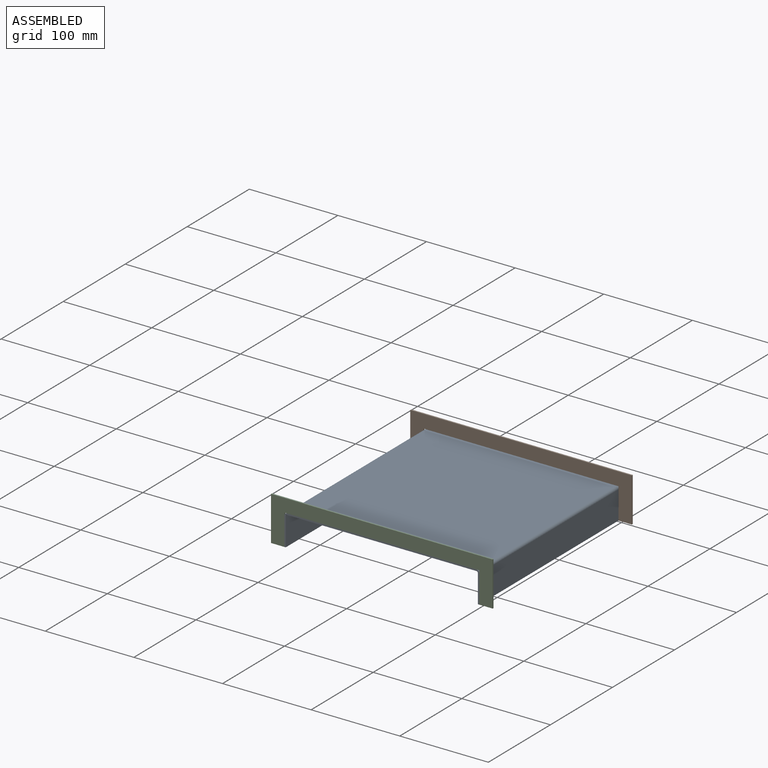
[diagram: assembled view]
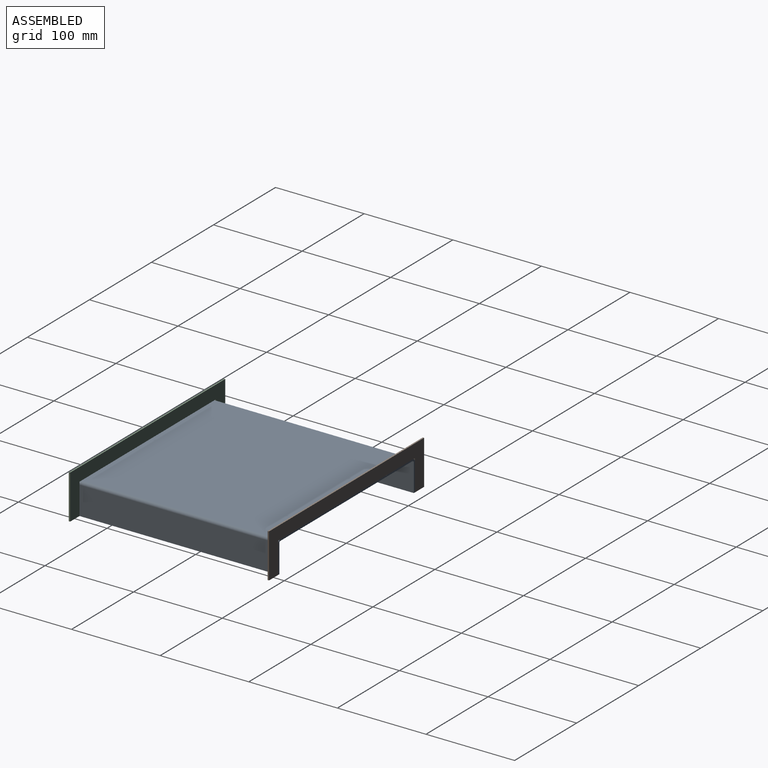
[diagram: assembled view, second angle]
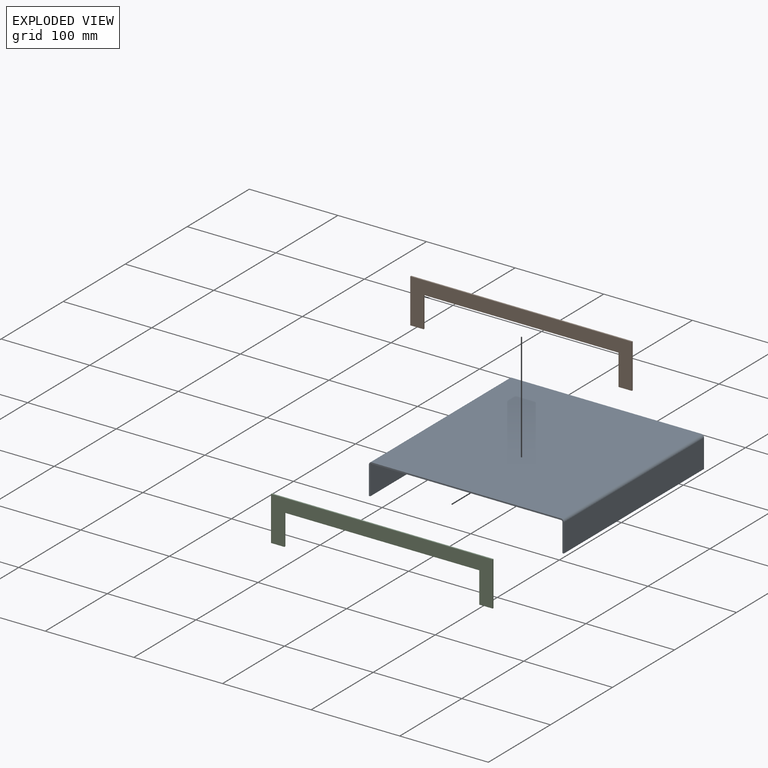
[diagram: exploded view]
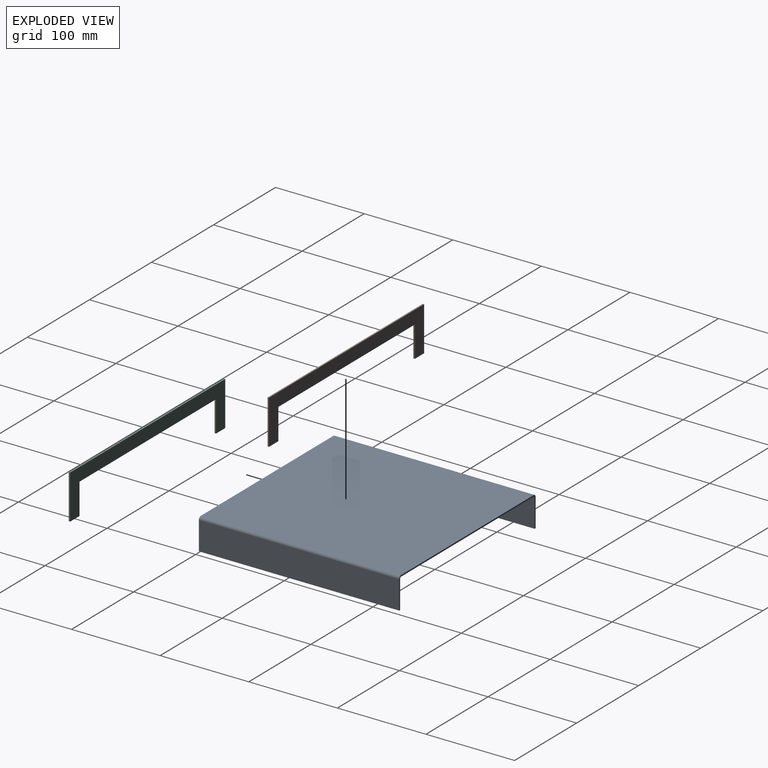
[diagram: exploded view, second angle]
ASSEMBLY  parts=3 mates=2
PART A: 14 faces, bbox 220x226x35 mm
  f0: plane 226x31.8mm, normal (1,0,0), area 7186.8mm2, adj f1,f11,f12,f13
  f1: cylinder r=3.2mm len=226mm, axis (0,-1,0), area 1136mm2, adj f0,f2,f12,f13
  f2: plane 226x213.6mm, normal (0,0,1), area 48273.6mm2, adj f1,f3,f12,f13
  f3: cylinder r=3.2mm len=226mm, axis (0,-1,0), area 1136mm2, adj f2,f4,f12,f13
  f4: plane 226x31.8mm, normal (-1,0,0), area 7186.8mm2, adj f3,f5,f12,f13
  f5: plane 226x1.6mm, normal (0,0,-1), area 361.6mm2, adj f4,f6,f12,f13
  f6: plane 226x31.8mm, normal (1,0,0), area 7186.8mm2, adj f5,f7,f12,f13
  f7: cylinder r=1.6mm len=226mm, axis (0,-1,0), area 568mm2, adj f6,f8,f12,f13
  f8: plane 226x213.6mm, normal (0,0,-1), area 48273.6mm2, adj f7,f9,f12,f13
  f9: cylinder r=1.6mm len=226mm, axis (0,-1,0), area 568mm2, adj f8,f10,f12,f13
  f10: plane 226x31.8mm, normal (-1,0,0), area 7186.8mm2, adj f9,f11,f12,f13
  f11: plane 226x1.6mm, normal (0,0,-1), area 361.6mm2, adj f0,f10,f12,f13
  f12: plane 220x35mm, normal (0,1,0), area 455.6mm2, adj f0,f1,f2,f3,f4,f5,f6,f7
  f13: plane 220x35mm, normal (0,-1,0), area 455.6mm2, adj f0,f1,f2,f3,f4,f5,f6,f7
PART B: 10 faces, bbox 250x1.6x50 mm
  f0: plane 220x1.6mm, normal (0,0,-1), area 352mm2, adj f1,f7,f8,f9
  f1: plane 35x1.6mm, normal (-1,0,0), area 56mm2, adj f0,f2,f8,f9
  f2: plane 15x1.6mm, normal (0,0,-1), area 24mm2, adj f1,f3,f8,f9
  f3: plane 50x1.6mm, normal (1,0,0), area 80mm2, adj f2,f4,f8,f9
  f4: plane 250x1.6mm, normal (0,0,1), area 400mm2, adj f3,f5,f8,f9
  f5: plane 50x1.6mm, normal (-1,0,0), area 80mm2, adj f4,f6,f8,f9
  f6: plane 15x1.6mm, normal (0,0,-1), area 24mm2, adj f5,f7,f8,f9
  f7: plane 35x1.6mm, normal (1,0,0), area 56mm2, adj f0,f6,f8,f9
  f8: plane 250x50mm, normal (0,1,0), area 4800mm2, adj f0,f1,f2,f3,f4,f5,f6,f7
  f9: plane 250x50mm, normal (0,-1,0), area 4800mm2, adj f0,f1,f2,f3,f4,f5,f6,f7
PART C: same geometry as B
PLACE A t=(7.04,-131.43,123.13)mm
PLACE B t=(7.04,92.97,123.13)mm
PLACE C t=(7.04,-131.43,123.13)mm
MATE fastened C.f1 <-> A.f0  axis (-1,0,0) through (-98.29,-131.43,135.23)mm
MATE fastened B.f1 <-> A.f0  axis (-1,0,0) through (-98.29,94.57,135.23)mm
